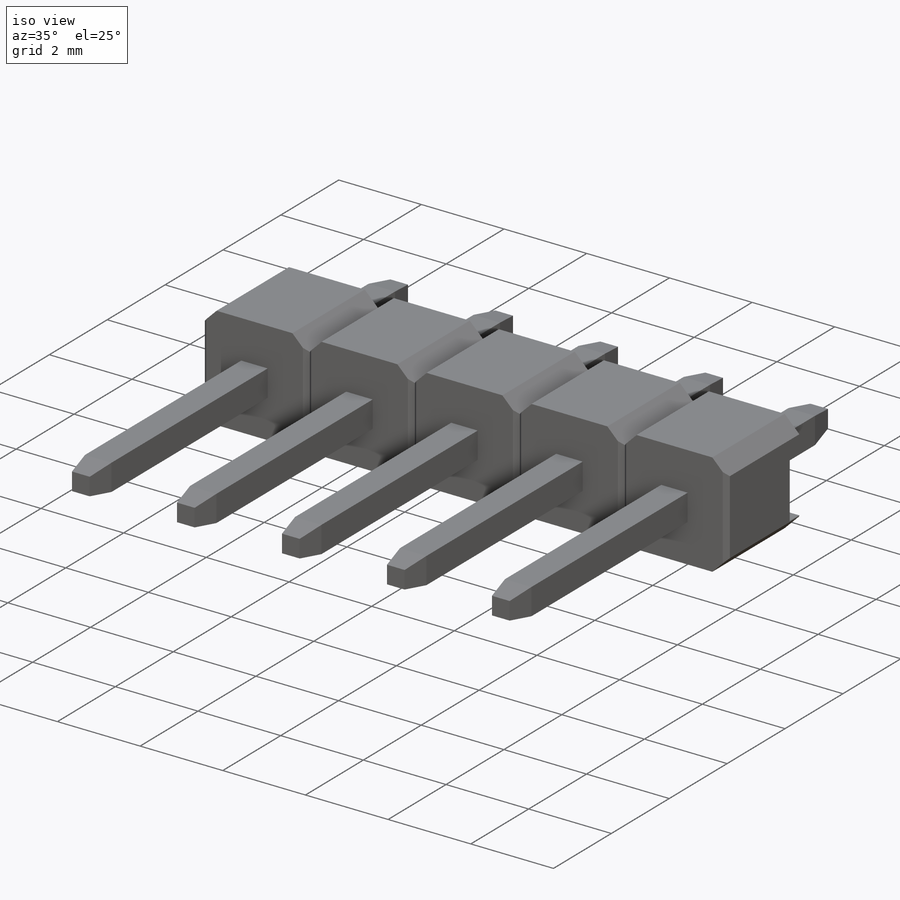
[diagram: iso view]
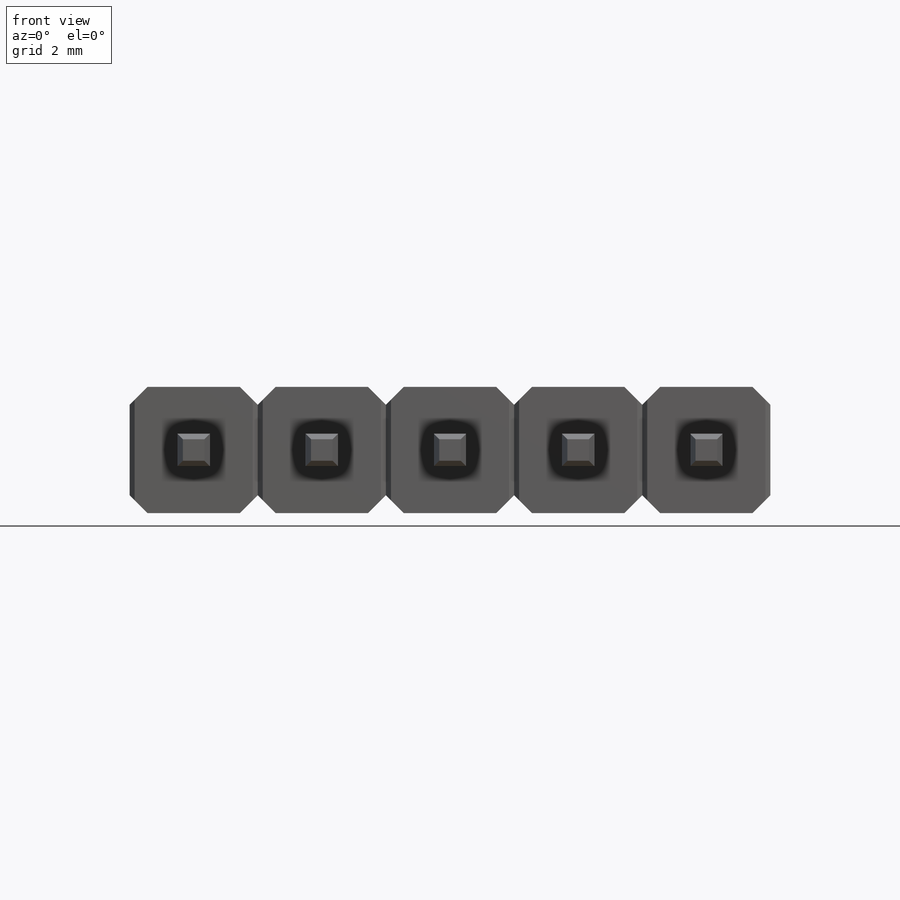
[diagram: front view]
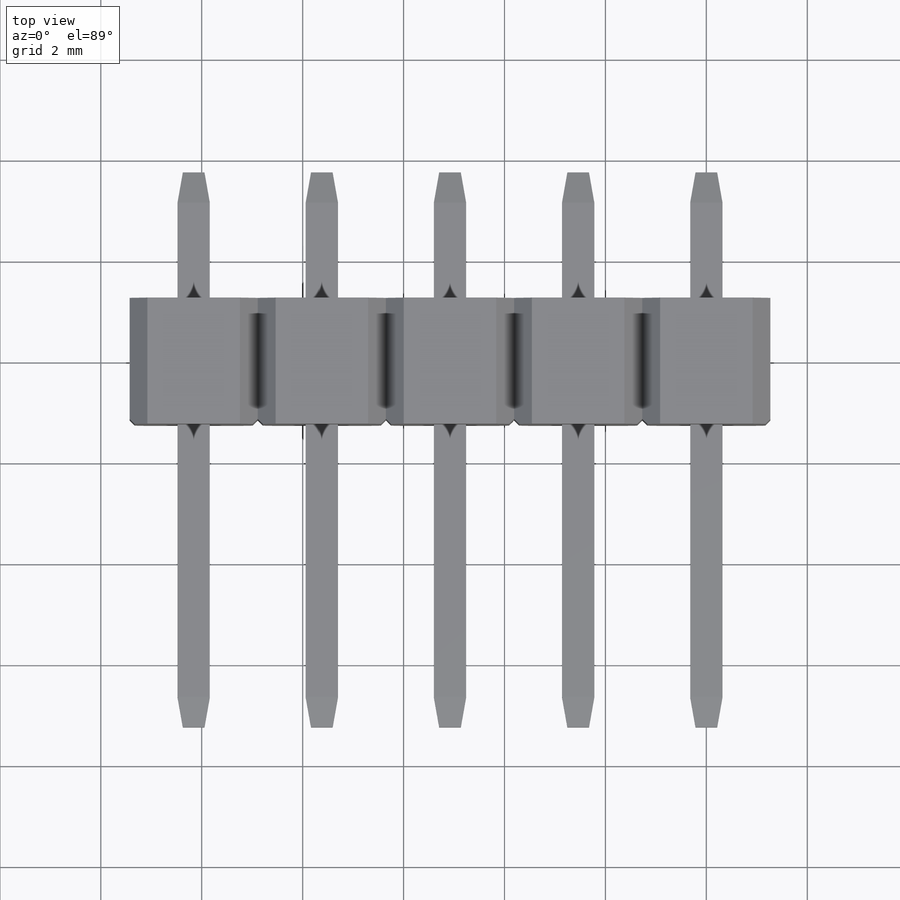
[diagram: top view]
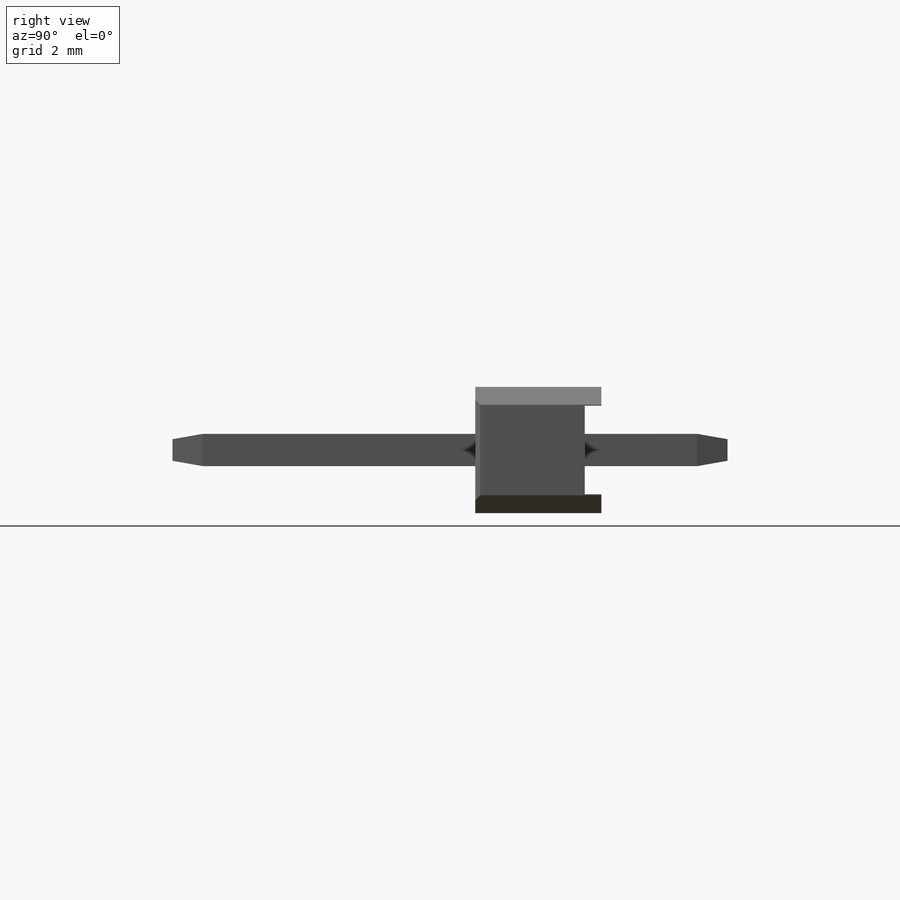
[diagram: right view]
SOLIDWORKS PART (.sldprt)
format: sldprt  version: not decoded by parser v0  size: 349,696 bytes
history: native  units: mm
features: sketch x5, cut_extrude x2, pattern_linear x2, material x1, extrude x1, chamfer x1, plane x1 (+12 scaffold rows collapsed)
feature tree (25):
  scaffold x12  (default folders/planes/origin — collapsed)
  material  "Material <not specified>"
  sketch  "Sketch1"  dims[c1.D5=0.25mm c1.D1=2.54mm c1.D2=2.5mm c1.D3=1.27mm c1.D4=1.25mm c2.D5=0.25mm c2.D6=0.25mm c2.D7=0.25mm c2.D8=0.25mm]
  extrude  "Extrude1"  Depth=1.25mm
  sketch  "Sketch4"
  cut_extrude  "Cut-Extrude3"  [1 undecoded]
  pattern_linear  "LPattern4"  Count1=5 Count2=1 Spacing1=2.54mm Spacing2=2.54mm
  sketch  "Sketch2"  dims[c1.D1=0.33mm c1.D2=1.7mm c1.D3=0.85mm c2.D2=0.02mm c2.D3=0.02mm]
  cut_extrude  "Cut-Extrude1"  [1 undecoded]
  sketch  "Sketch3"  dims[c1.D1=6.0mm c1.D2=1.5mm c1.D3=2.0mm c2.D2=2.5mm c2.D1=0.32mm c3.D2=0.32mm c3.D5=0.64mm c3.D6=0.5mm c3.D7=5.0mm]
  pattern_linear  "LPattern5"  Count1=1 Count2=5 Spacing1=2.54mm Spacing2=2.54mm
  chamfer  "Chamfer2"  Distance=0.6mm Angle=10deg
  plane  "Board Plane"  Offset=1.5mm
  sketch  "Component_Outline"
decode coverage: 7 of 11 modeling features carry decoded parameters
note: 2 parameter values undecoded
note: suppression state not decoded; provenance and decode notes live in map.json
